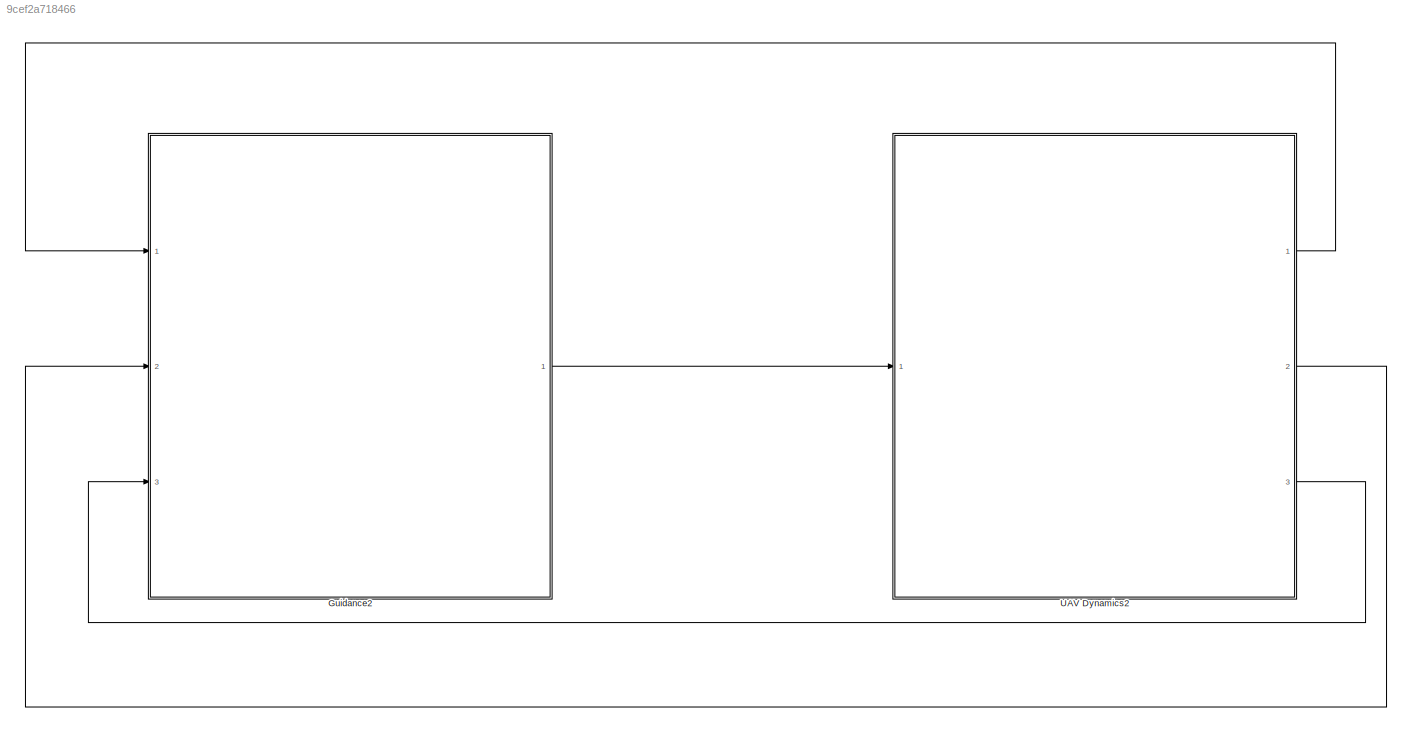
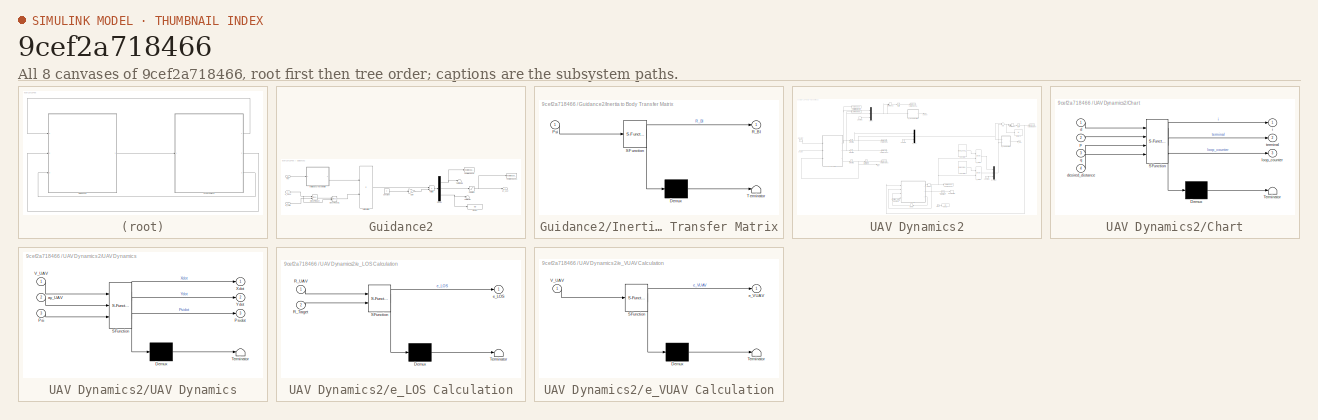
[diagram: thumbnail index - all 8 canvases of the model, root first then tree order]
MODEL slx_9cef2a718466
KIND model
CONFIG AbsTol = auto
CONFIG EnableMultiTasking = off
CONFIG FixedStep = 0.01
CONFIG InitFcn = Initial_Data
CONFIG MaxStep = auto
CONFIG MinStep = auto
CONFIG RelTol = 1e-3
CONFIG SampleTimeConstraint = Unconstrained
CONFIG Solver = FixedStepAuto
CONFIG SolverName = FixedStepAuto
CONFIG StartTime = 0.0
CONFIG StopFcn = Plots_Problme_1_Part_A
CONFIG StopTime = 200
BLOCK [SubSystem] Guidance2
  Ports = [3, 1]
  RequestExecContextInheritance = off
BLOCK [Constant] Guidance2/Constant
  Value = V
BLOCK [Reference] Guidance2/Cross Product  REF=vrlib/Utilities/Cross Product
  Ports = [2, 1]
  SourceBlock = vrlib/Utilities/Cross Product
  SourceProductBaseCode = VR
  SourceProductName = Simulink 3D Animation
  SourceType = Cross Product
BLOCK [Reference] Guidance2/Cross Product1  REF=vrlib/Utilities/Cross Product
  Ports = [2, 1]
  SourceBlock = vrlib/Utilities/Cross Product
  SourceProductBaseCode = VR
  SourceProductName = Simulink 3D Animation
  SourceType = Cross Product
BLOCK [Demux] Guidance2/Demux
  DisplayOption = bar
  Outputs = 3
  Ports = [1, 3]
BLOCK [Display] Guidance2/Display
  Decimation = 1
  Ports = [1]
BLOCK [Gain] Guidance2/Gain
  Gain = K
  OutDataTypeStr = Inherit: Inherit via internal rule
  ParamDataTypeStr = Inherit: Inherit via internal rule
  SaturateOnIntegerOverflow = off
BLOCK [SubSystem] Guidance2/Inertia to Body Transfer Matrix
  ErrorFcn = Stateflow.Translate.translate
  PermitHierarchicalResolution = ExplicitOnly
  Ports = [1, 1]
  RequestExecContextInheritance = off
  SFBlockType = MATLAB Function
  TreatAsAtomicUnit = on
BLOCK [Demux] Guidance2/Inertia to Body Transfer Matrix/ Demux 
  Outputs = 1
  Ports = [1, 1]
BLOCK [S-Function] Guidance2/Inertia to Body Transfer Matrix/ SFunction 
  EnableBusSupport = on
  FunctionName = sf_sfun
  PortCounts = [1 2]
  Ports = [1, 2]
  SFcnIsStateOwnerBlock = off
  SFunctionDeploymentMode = off
  Tag = Stateflow S-Function Problem_1_Part_A 10
BLOCK [Terminator] Guidance2/Inertia to Body Transfer Matrix/ Terminator 
BLOCK [Inport] Guidance2/Inertia to Body Transfer Matrix/Psi
  IconDisplay = Port number
BLOCK [Outport] Guidance2/Inertia to Body Transfer Matrix/R_BI
  IconDisplay = Port number
BLOCK [Product] Guidance2/MatrixMultiply
  InputSameDT = off
  Multiplication = Matrix(*)
  OutDataTypeStr = Inherit: Inherit via internal rule
  Ports = [2, 1]
  RndMeth = Floor
  SaturateOnIntegerOverflow = off
BLOCK [Product] Guidance2/Multiply
  InputSameDT = off
  OutDataTypeStr = Inherit: Inherit via internal rule
  Ports = [2, 1]
  RndMeth = Floor
  SaturateOnIntegerOverflow = off
BLOCK [Inport] Guidance2/Psi
  IconDisplay = Port number
  Port = 3
BLOCK [Saturate] Guidance2/Saturation
  InputPortMap = u0
  LowerLimit = -10
  Ports = [1, 1]
  UpperLimit = 10
BLOCK [Terminator] Guidance2/Terminator
BLOCK [Terminator] Guidance2/Terminator1
BLOCK [ToWorkspace] Guidance2/To Workspace
  FixptAsFi = on
  MaxDataPoints = inf
  Ports = [1]
  SampleTime = -1
  Save2DSignal = 3-D array (concatenate along third dimension)
  SaveFormat = Timeseries
  VariableName = ax_UAV
BLOCK [ToWorkspace] Guidance2/To Workspace1
  FixptAsFi = on
  MaxDataPoints = inf
  Ports = [1]
  SampleTime = -1
  Save2DSignal = 3-D array (concatenate along third dimension)
  SaveFormat = Timeseries
  VariableName = ay_UAV
BLOCK [Outport] Guidance2/ay_UAV
  IconDisplay = Port number
BLOCK [Inport] Guidance2/e_LOS
  IconDisplay = Port number
BLOCK [Inport] Guidance2/e_VUAV
  IconDisplay = Port number
  Port = 2
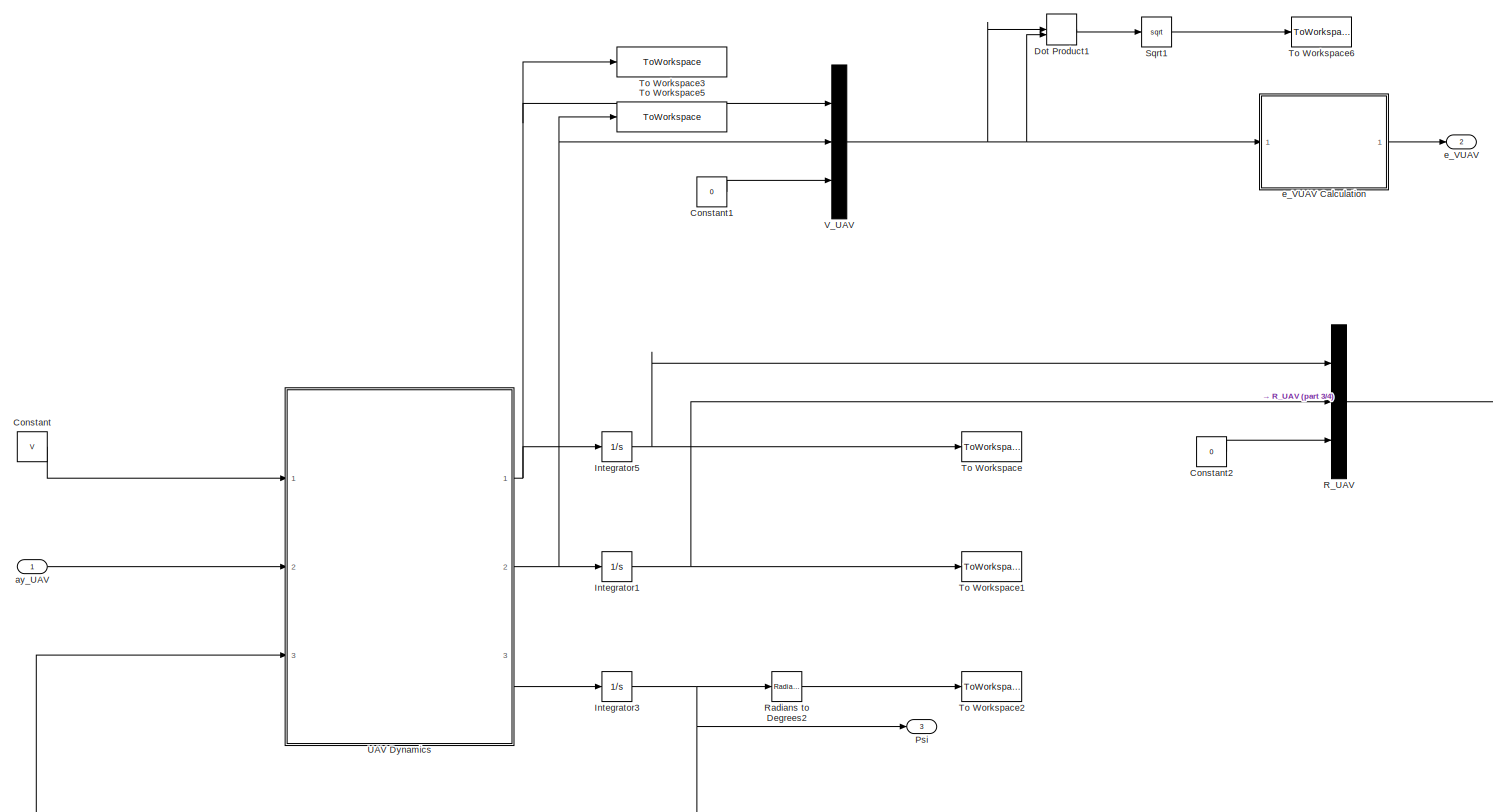
[diagram: UAV Dynamics2 - part 1/4, top left region]
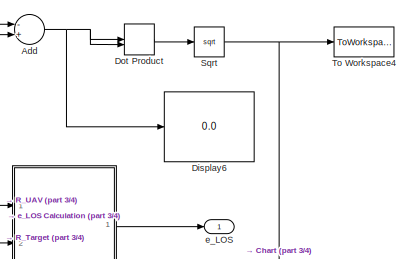
[diagram: UAV Dynamics2 - part 2/4, top right region]
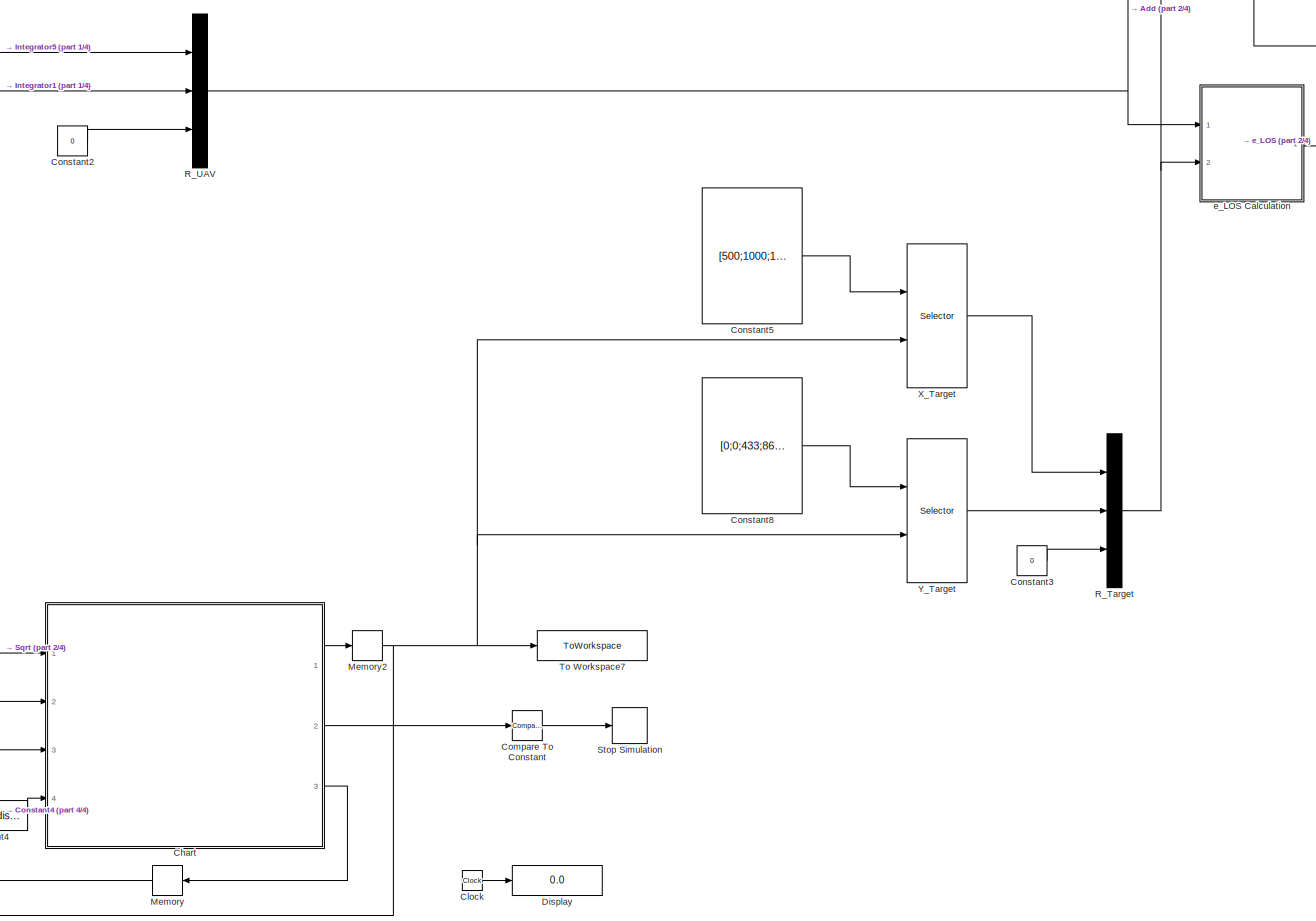
[diagram: UAV Dynamics2 - part 3/4, central region]
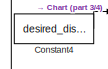
[diagram: UAV Dynamics2 - part 4/4, bottom center region]
BLOCK [SubSystem] UAV Dynamics2
  Ports = [1, 3]
  RequestExecContextInheritance = off
BLOCK [Sum] UAV Dynamics2/Add
  InputSameDT = off
  Inputs = -+
  OutDataTypeStr = Inherit: Inherit via internal rule
  Ports = [2, 1]
  SaturateOnIntegerOverflow = off
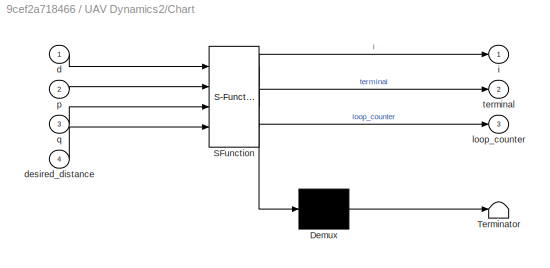
BLOCK [SubSystem] UAV Dynamics2/Chart
  ErrorFcn = Stateflow.Translate.translate
  PermitHierarchicalResolution = ExplicitOnly
  Ports = [4, 3]
  RequestExecContextInheritance = off
  SFBlockType = Chart
  TreatAsAtomicUnit = on
BLOCK [Demux] UAV Dynamics2/Chart/ Demux 
  Outputs = 1
  Ports = [1, 1]
BLOCK [S-Function] UAV Dynamics2/Chart/ SFunction 
  EnableBusSupport = on
  FunctionName = sf_sfun
  PortCounts = [4 4]
  Ports = [4, 4]
  SFcnIsStateOwnerBlock = off
  SFunctionDeploymentMode = off
  Tag = Stateflow S-Function Problem_1_Part_A 11
BLOCK [Terminator] UAV Dynamics2/Chart/ Terminator 
BLOCK [Inport] UAV Dynamics2/Chart/d
  IconDisplay = Port number
BLOCK [Inport] UAV Dynamics2/Chart/desired_distance
  IconDisplay = Port number
  Port = 4
BLOCK [Outport] UAV Dynamics2/Chart/i
  IconDisplay = Port number
BLOCK [Outport] UAV Dynamics2/Chart/loop_counter
  IconDisplay = Port number
  Port = 3
BLOCK [Inport] UAV Dynamics2/Chart/p
  IconDisplay = Port number
  Port = 2
BLOCK [Inport] UAV Dynamics2/Chart/q
  IconDisplay = Port number
  Port = 3
BLOCK [Outport] UAV Dynamics2/Chart/terminal
  IconDisplay = Port number
  Port = 2
BLOCK [Clock] UAV Dynamics2/Clock
BLOCK [Reference] UAV Dynamics2/Compare To Constant  REF=simulink/Logic and Bit
Operations/Compare
To Constant
  Ports = [1, 1]
  SourceBlock = simulink/Logic and Bit\nOperations/Compare\nTo Constant
  SourceProductBaseCode = SL
  SourceProductName = Simulink
  SourceType = Compare To Constant
BLOCK [Constant] UAV Dynamics2/Constant
  Value = V
BLOCK [Constant] UAV Dynamics2/Constant1
  Value = 0
BLOCK [Constant] UAV Dynamics2/Constant2
  Value = 0
BLOCK [Constant] UAV Dynamics2/Constant3
  Value = 0
BLOCK [Constant] UAV Dynamics2/Constant4
  Value = desired_distance
BLOCK [Constant] UAV Dynamics2/Constant5
  Value = [500;1000;1250;1000;500;250]
  VectorParams1D = off
BLOCK [Constant] UAV Dynamics2/Constant8
  Value = [0;0;433;866;866;433]
  VectorParams1D = off
BLOCK [Display] UAV Dynamics2/Display
  Decimation = 1
  Ports = [1]
BLOCK [Display] UAV Dynamics2/Display6
  Decimation = 1
  Ports = [1]
BLOCK [DotProduct] UAV Dynamics2/Dot Product
  OutDataTypeStr = Inherit: Inherit via internal rule
BLOCK [DotProduct] UAV Dynamics2/Dot Product1
  OutDataTypeStr = Inherit: Inherit via internal rule
BLOCK [Integrator] UAV Dynamics2/Integrator1
  InitialCondition = Y0
  Ports = [1, 1]
BLOCK [Integrator] UAV Dynamics2/Integrator3
  InitialCondition = Psi0*pi/180
  Ports = [1, 1]
BLOCK [Integrator] UAV Dynamics2/Integrator5
  InitialCondition = X0
  Ports = [1, 1]
BLOCK [Memory] UAV Dynamics2/Memory
  InitialCondition = 1
BLOCK [Memory] UAV Dynamics2/Memory2
  InitialCondition = 2
BLOCK [Outport] UAV Dynamics2/Psi
  IconDisplay = Port number
  Port = 3
BLOCK [Mux] UAV Dynamics2/R_Target
  DisplayOption = bar
  Inputs = 3
  Ports = [3, 1]
BLOCK [Mux] UAV Dynamics2/R_UAV
  DisplayOption = bar
  Inputs = 3
  Ports = [3, 1]
BLOCK [Reference] UAV Dynamics2/Radians to Degrees2  REF=simulink_extras/Transformations/Radians
to Degrees
  Ports = [1, 1]
  SourceBlock = simulink_extras/Transformations/Radians\nto Degrees
  SourceProductBaseCode = SL
  SourceProductName = Simulink
  SourceType = RadiansToDegrees
BLOCK [Sqrt] UAV Dynamics2/Sqrt
BLOCK [Sqrt] UAV Dynamics2/Sqrt1
BLOCK [Stop] UAV Dynamics2/Stop Simulation
BLOCK [ToWorkspace] UAV Dynamics2/To Workspace
  FixptAsFi = on
  MaxDataPoints = inf
  Ports = [1]
  SampleTime = -1
  Save2DSignal = 3-D array (concatenate along third dimension)
  SaveFormat = Timeseries
  VariableName = X_UAV
BLOCK [ToWorkspace] UAV Dynamics2/To Workspace1
  FixptAsFi = on
  MaxDataPoints = inf
  Ports = [1]
  SampleTime = -1
  Save2DSignal = 3-D array (concatenate along third dimension)
  SaveFormat = Timeseries
  VariableName = Y_UAV
BLOCK [ToWorkspace] UAV Dynamics2/To Workspace2
  FixptAsFi = on
  MaxDataPoints = inf
  Ports = [1]
  SampleTime = -1
  Save2DSignal = 3-D array (concatenate along third dimension)
  SaveFormat = Timeseries
  VariableName = Psi_UAV
BLOCK [ToWorkspace] UAV Dynamics2/To Workspace3
  FixptAsFi = on
  MaxDataPoints = inf
  Ports = [1]
  SampleTime = -1
  Save2DSignal = 3-D array (concatenate along third dimension)
  SaveFormat = Timeseries
  VariableName = Xdot_UAV
BLOCK [ToWorkspace] UAV Dynamics2/To Workspace4
  FixptAsFi = on
  MaxDataPoints = inf
  Ports = [1]
  SampleTime = -1
  Save2DSignal = 3-D array (concatenate along third dimension)
  SaveFormat = Timeseries
  VariableName = d
BLOCK [ToWorkspace] UAV Dynamics2/To Workspace5
  FixptAsFi = on
  MaxDataPoints = inf
  Ports = [1]
  SampleTime = -1
  Save2DSignal = 3-D array (concatenate along third dimension)
  SaveFormat = Timeseries
  VariableName = Ydot_UAV
BLOCK [ToWorkspace] UAV Dynamics2/To Workspace6
  FixptAsFi = on
  MaxDataPoints = inf
  Ports = [1]
  SampleTime = -1
  Save2DSignal = 3-D array (concatenate along third dimension)
  SaveFormat = Timeseries
  VariableName = V_UAV
BLOCK [ToWorkspace] UAV Dynamics2/To Workspace7
  FixptAsFi = on
  MaxDataPoints = inf
  Ports = [1]
  SampleTime = -1
  Save2DSignal = 3-D array (concatenate along third dimension)
  SaveFormat = Timeseries
  VariableName = Target_Movement
BLOCK [SubSystem] UAV Dynamics2/UAV Dynamics
  ErrorFcn = Stateflow.Translate.translate
  PermitHierarchicalResolution = ExplicitOnly
  Ports = [3, 3]
  RequestExecContextInheritance = off
  SFBlockType = MATLAB Function
  TreatAsAtomicUnit = on
BLOCK [Demux] UAV Dynamics2/UAV Dynamics/ Demux 
  Outputs = 1
  Ports = [1, 1]
BLOCK [S-Function] UAV Dynamics2/UAV Dynamics/ SFunction 
  EnableBusSupport = on
  FunctionName = sf_sfun
  PortCounts = [3 4]
  Ports = [3, 4]
  SFcnIsStateOwnerBlock = off
  SFunctionDeploymentMode = off
  Tag = Stateflow S-Function Problem_1_Part_A 12
BLOCK [Terminator] UAV Dynamics2/UAV Dynamics/ Terminator 
BLOCK [Inport] UAV Dynamics2/UAV Dynamics/Psi
  IconDisplay = Port number
  Port = 3
BLOCK [Outport] UAV Dynamics2/UAV Dynamics/Psidot
  IconDisplay = Port number
  Port = 3
BLOCK [Inport] UAV Dynamics2/UAV Dynamics/V_UAV
  IconDisplay = Port number
BLOCK [Outport] UAV Dynamics2/UAV Dynamics/Xdot
  IconDisplay = Port number
BLOCK [Outport] UAV Dynamics2/UAV Dynamics/Ydot
  IconDisplay = Port number
  Port = 2
BLOCK [Inport] UAV Dynamics2/UAV Dynamics/ay_UAV
  IconDisplay = Port number
  Port = 2
BLOCK [Mux] UAV Dynamics2/V_UAV
  DisplayOption = bar
  Inputs = 3
  Ports = [3, 1]
BLOCK [Selector] UAV Dynamics2/X_Target
  IndexOptions = Index vector (port)
  Indices = 1
  InputPortWidth = 6
  OutputSizes = 2
  Ports = [2, 1]
BLOCK [Selector] UAV Dynamics2/Y_Target
  IndexOptions = Index vector (port)
  Indices = 1
  InputPortWidth = 6
  OutputSizes = 2
  Ports = [2, 1]
BLOCK [Inport] UAV Dynamics2/ay_UAV
  IconDisplay = Port number
BLOCK [Outport] UAV Dynamics2/e_LOS
  IconDisplay = Port number
BLOCK [SubSystem] UAV Dynamics2/e_LOS Calculation
  ErrorFcn = Stateflow.Translate.translate
  PermitHierarchicalResolution = ExplicitOnly
  Ports = [2, 1]
  RequestExecContextInheritance = off
  SFBlockType = MATLAB Function
  TreatAsAtomicUnit = on
BLOCK [Demux] UAV Dynamics2/e_LOS Calculation/ Demux 
  Outputs = 1
  Ports = [1, 1]
BLOCK [S-Function] UAV Dynamics2/e_LOS Calculation/ SFunction 
  EnableBusSupport = on
  FunctionName = sf_sfun
  PortCounts = [2 2]
  Ports = [2, 2]
  SFcnIsStateOwnerBlock = off
  SFunctionDeploymentMode = off
  Tag = Stateflow S-Function Problem_1_Part_A 13
BLOCK [Terminator] UAV Dynamics2/e_LOS Calculation/ Terminator 
BLOCK [Inport] UAV Dynamics2/e_LOS Calculation/R_Target
  IconDisplay = Port number
  Port = 2
BLOCK [Inport] UAV Dynamics2/e_LOS Calculation/R_UAV
  IconDisplay = Port number
BLOCK [Outport] UAV Dynamics2/e_LOS Calculation/e_LOS
  IconDisplay = Port number
BLOCK [Outport] UAV Dynamics2/e_VUAV
  IconDisplay = Port number
  Port = 2
BLOCK [SubSystem] UAV Dynamics2/e_VUAV Calculation
  ErrorFcn = Stateflow.Translate.translate
  PermitHierarchicalResolution = ExplicitOnly
  Ports = [1, 1]
  RequestExecContextInheritance = off
  SFBlockType = MATLAB Function
  TreatAsAtomicUnit = on
BLOCK [Demux] UAV Dynamics2/e_VUAV Calculation/ Demux 
  Outputs = 1
  Ports = [1, 1]
BLOCK [S-Function] UAV Dynamics2/e_VUAV Calculation/ SFunction 
  EnableBusSupport = on
  FunctionName = sf_sfun
  PortCounts = [1 2]
  Ports = [1, 2]
  SFcnIsStateOwnerBlock = off
  SFunctionDeploymentMode = off
  Tag = Stateflow S-Function Problem_1_Part_A 15
BLOCK [Terminator] UAV Dynamics2/e_VUAV Calculation/ Terminator 
BLOCK [Inport] UAV Dynamics2/e_VUAV Calculation/V_UAV
  IconDisplay = Port number
BLOCK [Outport] UAV Dynamics2/e_VUAV Calculation/e_VUAV
  IconDisplay = Port number
LINE Guidance2/Constant:1 -> Guidance2/Gain:1
LINE Guidance2/Cross Product1:1 -> Guidance2/MatrixMultiply:2
LINE Guidance2/Cross Product:1 -> Guidance2/Cross Product1:1
NET Guidance2/Demux:1 -> Guidance2/Terminator1:1, Guidance2/To Workspace:1
LINE Guidance2/Demux:2 -> Guidance2/Saturation:1
NET Guidance2/Demux:3 -> Guidance2/Display:1, Guidance2/Terminator:1
LINE Guidance2/Gain:1 -> Guidance2/Multiply:2
LINE Guidance2/Inertia to Body Transfer Matrix:1 -> Guidance2/MatrixMultiply:1
LINE Guidance2/MatrixMultiply:1 -> Guidance2/Multiply:1
LINE Guidance2/Multiply:1 -> Guidance2/Demux:1
LINE Guidance2/Psi:1 -> Guidance2/Inertia to Body Transfer Matrix:1
NET Guidance2/Saturation:1 -> Guidance2/To Workspace1:1, Guidance2/ay_UAV:1
LINE Guidance2/e_LOS:1 -> Guidance2/Cross Product:2
NET Guidance2/e_VUAV:1 -> Guidance2/Cross Product1:2, Guidance2/Cross Product:1
LINE Guidance2:1 -> UAV Dynamics2:1
NET UAV Dynamics2/Add:1 -> UAV Dynamics2/Display6:1, UAV Dynamics2/Dot Product:1, UAV Dynamics2/Dot Product:2
LINE UAV Dynamics2/Chart:1 -> UAV Dynamics2/Memory2:1
LINE UAV Dynamics2/Chart:2 -> UAV Dynamics2/Compare To Constant:1
LINE UAV Dynamics2/Chart:3 -> UAV Dynamics2/Memory:1
LINE UAV Dynamics2/Clock:1 -> UAV Dynamics2/Display:1
LINE UAV Dynamics2/Compare To Constant:1 -> UAV Dynamics2/Stop Simulation:1
LINE UAV Dynamics2/Constant1:1 -> UAV Dynamics2/V_UAV:3
LINE UAV Dynamics2/Constant2:1 -> UAV Dynamics2/R_UAV:3
LINE UAV Dynamics2/Constant3:1 -> UAV Dynamics2/R_Target:3
LINE UAV Dynamics2/Constant4:1 -> UAV Dynamics2/Chart:4
LINE UAV Dynamics2/Constant5:1 -> UAV Dynamics2/X_Target:1
LINE UAV Dynamics2/Constant8:1 -> UAV Dynamics2/Y_Target:1
LINE UAV Dynamics2/Constant:1 -> UAV Dynamics2/UAV Dynamics:1
LINE UAV Dynamics2/Dot Product1:1 -> UAV Dynamics2/Sqrt1:1
LINE UAV Dynamics2/Dot Product:1 -> UAV Dynamics2/Sqrt:1
NET UAV Dynamics2/Integrator1:1 -> UAV Dynamics2/R_UAV:2, UAV Dynamics2/To Workspace1:1
NET UAV Dynamics2/Integrator3:1 -> UAV Dynamics2/Psi:1, UAV Dynamics2/Radians to Degrees2:1, UAV Dynamics2/UAV Dynamics:3
NET UAV Dynamics2/Integrator5:1 -> UAV Dynamics2/R_UAV:1, UAV Dynamics2/To Workspace:1
NET UAV Dynamics2/Memory2:1 -> UAV Dynamics2/Chart:2, UAV Dynamics2/To Workspace7:1, UAV Dynamics2/X_Target:2, UAV Dynamics2/Y_Target:2
LINE UAV Dynamics2/Memory:1 -> UAV Dynamics2/Chart:3
NET UAV Dynamics2/R_Target:1 -> UAV Dynamics2/Add:2, UAV Dynamics2/e_LOS Calculation:2
NET UAV Dynamics2/R_UAV:1 -> UAV Dynamics2/Add:1, UAV Dynamics2/e_LOS Calculation:1
LINE UAV Dynamics2/Radians to Degrees2:1 -> UAV Dynamics2/To Workspace2:1
LINE UAV Dynamics2/Sqrt1:1 -> UAV Dynamics2/To Workspace6:1
NET UAV Dynamics2/Sqrt:1 -> UAV Dynamics2/Chart:1, UAV Dynamics2/To Workspace4:1
NET UAV Dynamics2/UAV Dynamics:1 -> UAV Dynamics2/Integrator5:1, UAV Dynamics2/To Workspace3:1, UAV Dynamics2/V_UAV:1
NET UAV Dynamics2/UAV Dynamics:2 -> UAV Dynamics2/Integrator1:1, UAV Dynamics2/To Workspace5:1, UAV Dynamics2/V_UAV:2
LINE UAV Dynamics2/UAV Dynamics:3 -> UAV Dynamics2/Integrator3:1
NET UAV Dynamics2/V_UAV:1 -> UAV Dynamics2/Dot Product1:1, UAV Dynamics2/Dot Product1:2, UAV Dynamics2/e_VUAV Calculation:1
LINE UAV Dynamics2/X_Target:1 -> UAV Dynamics2/R_Target:1
LINE UAV Dynamics2/Y_Target:1 -> UAV Dynamics2/R_Target:2
LINE UAV Dynamics2/ay_UAV:1 -> UAV Dynamics2/UAV Dynamics:2
LINE UAV Dynamics2/e_LOS Calculation:1 -> UAV Dynamics2/e_LOS:1
LINE UAV Dynamics2/e_VUAV Calculation:1 -> UAV Dynamics2/e_VUAV:1
LINE UAV Dynamics2:1 -> Guidance2:1
LINE UAV Dynamics2:2 -> Guidance2:2
LINE UAV Dynamics2:3 -> Guidance2:3
note: NET lines group one-source signal fan-out (src -> all destinations, sorted); 1:1 wires keep LINE
CHART Guidance2/Inertia to Body Transfer Matrix states=1 transitions=1
  STATE_LABEL 'eML_blk_kernel()'
  STATE_LABEL 'SCRIPT:\nfunction R_BI = fcn(Psi)\n\nR_Psi = [cos(Psi) sin(Psi) 0;-sin(Psi) cos(Psi) 0;0 0 1];\nR_BI = R_Psi;\n'
CHART UAV Dynamics2/Chart states=1 transitions=1
  STATE_LABEL 'TargetMovement\ni = p;\nterminal = 0;\nloop_counter = q;\nif d  <  desired_distance\n    \n    i = p + 1;\n    \nend\nif i  >  6\n    \n    i = 1;\n    loop_counter = q + 1;\n    \nend\nif i == 5 && loop_counter == 2\n    \n    terminal = 1;\n    \nend\n'
CHART UAV Dynamics2/UAV Dynamics states=1 transitions=1
  STATE_LABEL 'eML_blk_kernel()'
  STATE_LABEL 'SCRIPT:\nfunction [Xdot,Ydot,Psidot]  = fcn(V_UAV,ay_UAV,Psi)\n\nXdot = V_UAV*cos(Psi);\nYdot = V_UAV*sin(Psi);\nPsidot = ay_UAV/V_UAV;'
CHART UAV Dynamics2/e_LOS Calculation states=1 transitions=1
  STATE_LABEL 'eML_blk_kernel()'
  STATE_LABEL 'SCRIPT:\nfunction e_LOS  = fcn(R_UAV,R_Target)\n\ne_LOS = (R_Target-R_UAV)/(norm(R_Target-R_UAV));\n'
CHART UAV Dynamics2/e_VUAV Calculation states=1 transitions=1
  STATE_LABEL 'eML_blk_kernel()'
  STATE_LABEL 'SCRIPT:\nfunction e_VUAV = fcn(V_UAV)\n\ne_VUAV = V_UAV/(norm(V_UAV));\n'
